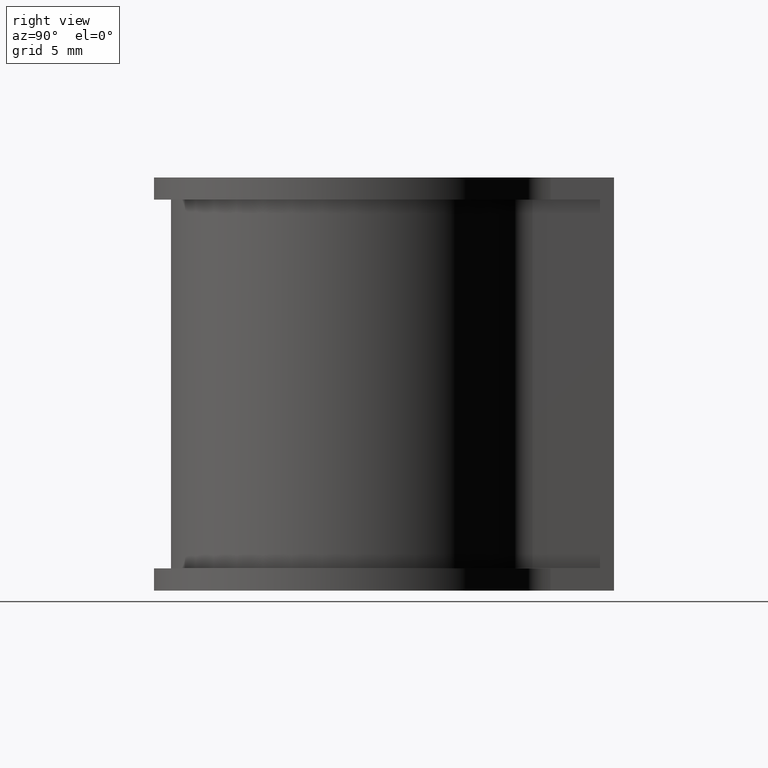
[diagram: clean part render]
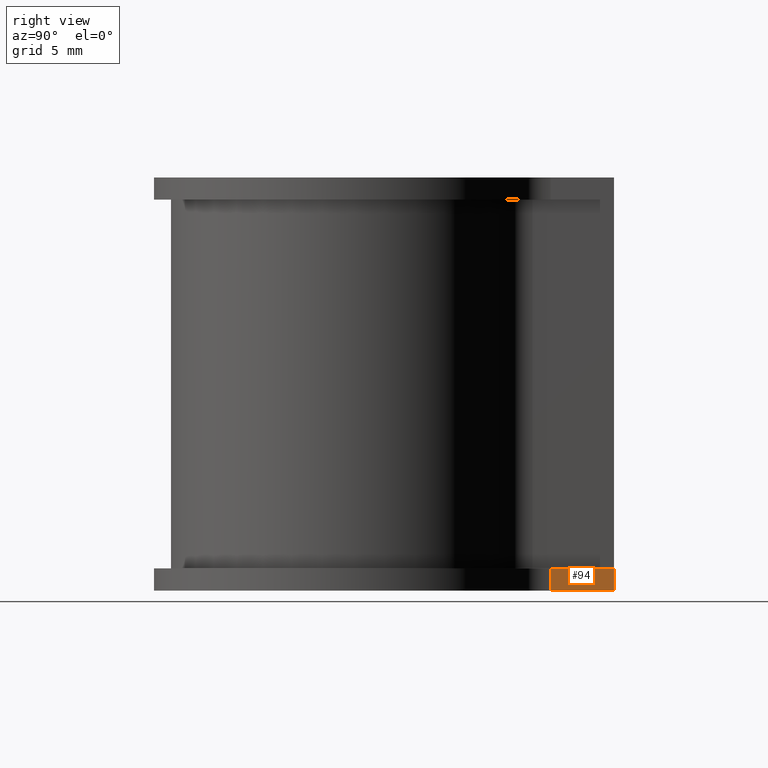
[diagram: same view with one face highlighted and labeled with its STEP entity id]
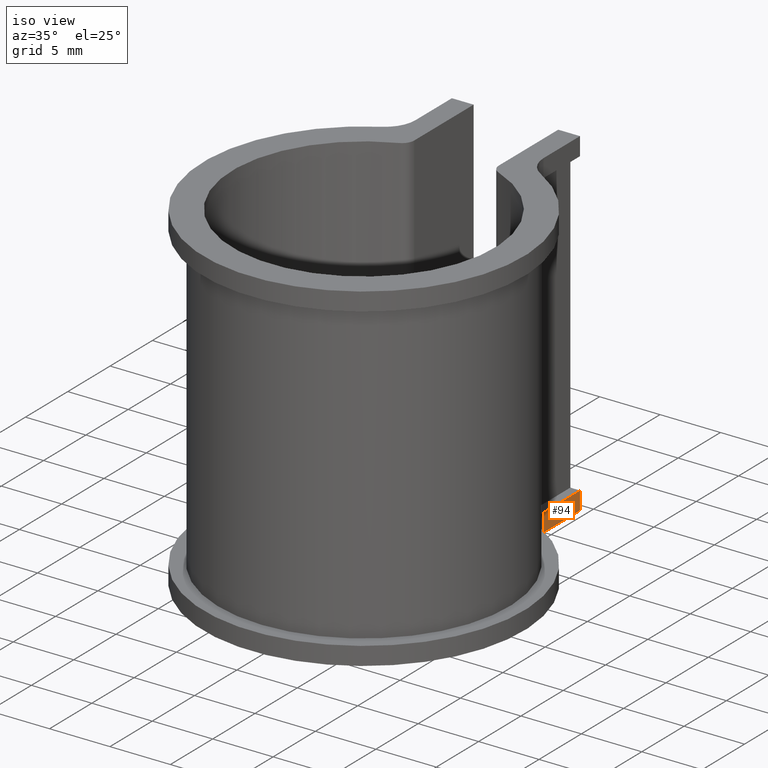
[diagram: same view with one face highlighted and labeled with its STEP entity id]
A machine part, right view. The second image highlights one B-rep face of the part: STEP entity #94.
A second angle (iso view) of the same face is appended — the face is thin or edge-on in the first view.
In plain terms, the highlighted planar face has unit normal (1, -0, 0).
Its self-contained STEP definition (entity closure, byte-faithful):
#94 = ADVANCED_FACE( '', ( #140 ), #141, .T. );
#140 = FACE_OUTER_BOUND( '', #192, .T. );
#141 = PLANE( '', #193 );
#192 = EDGE_LOOP( '', ( #375, #376, #377, #378 ) );
#193 = AXIS2_PLACEMENT_3D( '', #379, #380, #381 );
#375 = ORIENTED_EDGE( '', *, *, #440, .F. );
#376 = ORIENTED_EDGE( '', *, *, #489, .T. );
#377 = ORIENTED_EDGE( '', *, *, #483, .T. );
#378 = ORIENTED_EDGE( '', *, *, #496, .T. );
#379 = CARTESIAN_POINT( '', ( 5.30000000000000, 12.1438255916330, -26.5000000000000 ) );
#380 = DIRECTION( '', ( 1.00000000000000, -6.12303176911188E-017, 0.000000000000000 ) );
#381 = DIRECTION( '', ( -6.12303176911189E-017, -1.00000000000000, 0.000000000000000 ) );
#440 = EDGE_CURVE( '', #523, #525, #526, .T. );
#483 = EDGE_CURVE( '', #600, #598, #601, .T. );
#489 = EDGE_CURVE( '', #523, #600, #609, .T. );
#496 = EDGE_CURVE( '', #598, #525, #616, .T. );
#523 = VERTEX_POINT( '', #650 );
#525 = VERTEX_POINT( '', #652 );
#526 = LINE( '', #653, #654 );
#598 = VERTEX_POINT( '', #751 );
#600 = VERTEX_POINT( '', #754 );
#601 = LINE( '', #755, #756 );
#609 = LINE( '', #766, #767 );
#616 = LINE( '', #780, #781 );
#650 = CARTESIAN_POINT( '', ( 5.30000000000000, 13.6829273183775, -25.0000000000000 ) );
#652 = CARTESIAN_POINT( '', ( 5.30000000000000, 17.9782154210768, -25.0000000000000 ) );
#653 = CARTESIAN_POINT( '', ( 5.30000000000000, 12.1438255916330, -25.0000000000000 ) );
#654 = VECTOR( '', #810, 1000.00000000000 );
#751 = CARTESIAN_POINT( '', ( 5.30000000000000, 17.9782154210768, -26.5000000000000 ) );
#754 = CARTESIAN_POINT( '', ( 5.30000000000000, 13.6829273183775, -26.5000000000000 ) );
#755 = CARTESIAN_POINT( '', ( 5.30000000000000, 12.1438255916330, -26.5000000000000 ) );
#756 = VECTOR( '', #885, 1000.00000000000 );
#766 = CARTESIAN_POINT( '', ( 5.30000000000000, 13.6829273183775, -26.5000000000000 ) );
#767 = VECTOR( '', #897, 1000.00000000000 );
#780 = CARTESIAN_POINT( '', ( 5.30000000000000, 17.9782154210768, -26.5000000000000 ) );
#781 = VECTOR( '', #904, 1000.00000000000 );
#810 = DIRECTION( '', ( 6.12303176911189E-017, 1.00000000000000, 0.000000000000000 ) );
#885 = DIRECTION( '', ( 6.12303176911189E-017, 1.00000000000000, 0.000000000000000 ) );
#897 = DIRECTION( '', ( 0.000000000000000, 0.000000000000000, -1.00000000000000 ) );
#904 = DIRECTION( '', ( 0.000000000000000, 0.000000000000000, 1.00000000000000 ) );